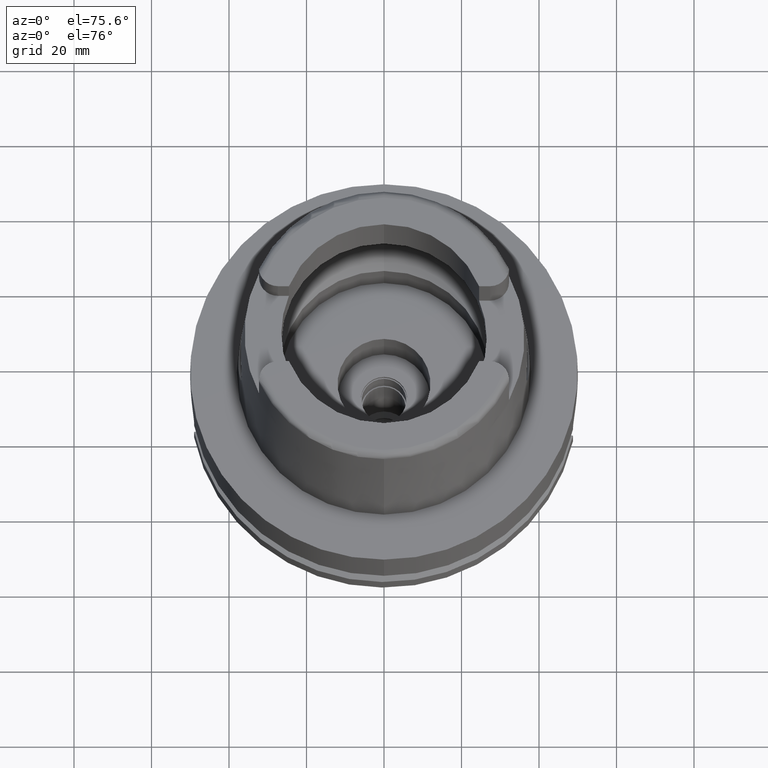
[diagram: clean part render]
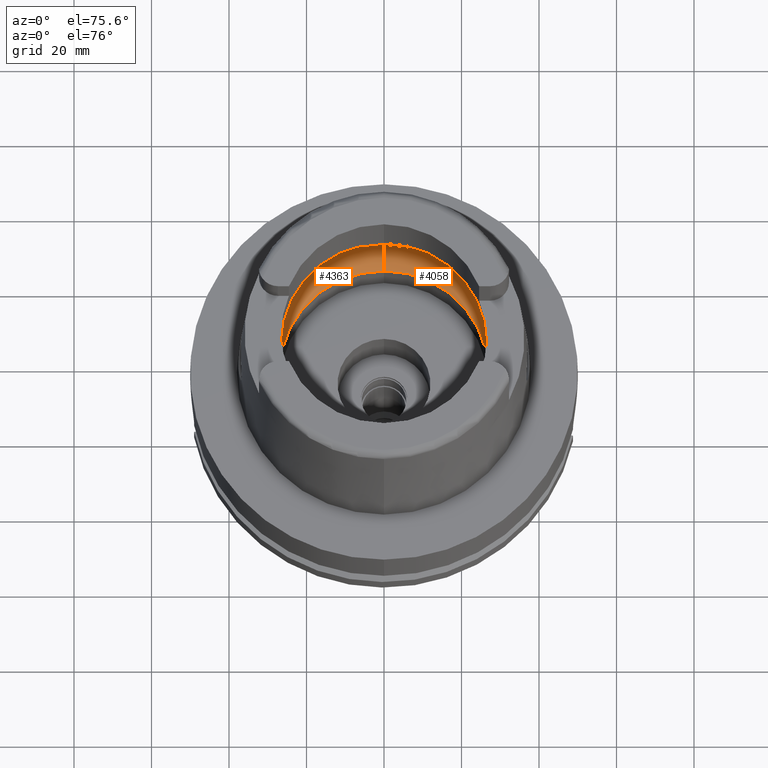
[diagram: same view with one multi-face feature highlighted, each face labeled with its STEP entity id]
A machine part, auxiliary view. The highlighted faces form ONE feature: a constant-radius fillet chain: 2 tangent blend faces with common blend radius 12 mm. The faces share edges in the B-rep.
Their STEP definitions:
[1] entity #4058 (Torus):
#4 = CIRCLE ( 'NONE', #631, 11.99999999999999822 ) ;
#12 = DIRECTION ( 'NONE',  ( 0.0000000000000000000, 0.0000000000000000000, -1.000000000000000000 ) ) ;
#110 = CARTESIAN_POINT ( 'NONE',  ( 0.0000000000000000000, 31.50000000000000000, 9.496624327025999790 ) ) ;
#115 = EDGE_CURVE ( 'NONE', #2966, #1504, #3160, .T. ) ;
#153 = CARTESIAN_POINT ( 'NONE',  ( 0.0000000000000000000, -19.50000000000000000, 9.496624327025999790 ) ) ;
#164 = CARTESIAN_POINT ( 'NONE',  ( 31.40918884336000616, 2.390158196043999705, 9.496624327025999790 ) ) ;
#363 = CARTESIAN_POINT ( 'NONE',  ( 0.0000000000000000000, 0.0000000000000000000, 9.496624327025999790 ) ) ;
#513 = CIRCLE ( 'NONE', #2943, 11.99999999999999822 ) ;
#537 = EDGE_CURVE ( 'NONE', #1291, #2337, #2030, .T. ) ;
#553 = DIRECTION ( 'NONE',  ( 0.0000000000000000000, 0.0000000000000000000, 1.000000000000000000 ) ) ;
#575 = AXIS2_PLACEMENT_3D ( 'NONE', #4468, #4438, #3554 ) ;
#631 = AXIS2_PLACEMENT_3D ( 'NONE', #2416, #4190, #4597 ) ;
#690 = ORIENTED_EDGE ( 'NONE', *, *, #4661, .F. ) ;
#801 = VERTEX_POINT ( 'NONE', #4441 ) ;
#1291 = VERTEX_POINT ( 'NONE', #110 ) ;
#1461 = CARTESIAN_POINT ( 'NONE',  ( 0.0000000000000000000, 0.0000000000000000000, 0.04993178413040000319 ) ) ;
#1504 = VERTEX_POINT ( 'NONE', #1541 ) ;
#1541 = CARTESIAN_POINT ( 'NONE',  ( 31.40918884336000616, -2.390158196043999705, 9.496624327025999790 ) ) ;
#1616 = CARTESIAN_POINT ( 'NONE',  ( 31.48971910753999026, 0.8697454017787721314, 9.000000000000001776 ) ) ;
#1654 = EDGE_LOOP ( 'NONE', ( #5456, #3839, #690, #2314, #4428, #3900, #3760 ) ) ;
#1717 = CARTESIAN_POINT ( 'NONE',  ( 31.46287568614665986, -1.684656699965325632, 9.190219625007294724 ) ) ;
#1779 = VERTEX_POINT ( 'NONE', #4093 ) ;
#2007 = DIRECTION ( 'NONE',  ( 0.0000000000000000000, 0.0000000000000000000, 1.000000000000000000 ) ) ;
#2030 = CIRCLE ( 'NONE', #2748, 31.50000000000000000 ) ;
#2066 = EDGE_CURVE ( 'NONE', #2337, #2966, #3656, .T. ) ;
#2153 = DIRECTION ( 'NONE',  ( 0.0000000000000000000, 1.000000000000000000, 0.0000000000000000000 ) ) ;
#2219 = EDGE_CURVE ( 'NONE', #1504, #801, #5444, .T. ) ;
#2304 = DIRECTION ( 'NONE',  ( 0.0000000000000000000, -0.6166666666667049990, -0.7872243785746061429 ) ) ;
#2314 = ORIENTED_EDGE ( 'NONE', *, *, #2530, .F. ) ;
#2337 = VERTEX_POINT ( 'NONE', #164 ) ;
#2416 = CARTESIAN_POINT ( 'NONE',  ( 0.0000000000000000000, 19.50000000000000000, 9.496624327025999790 ) ) ;
#2507 = EDGE_CURVE ( 'NONE', #1779, #801, #513, .T. ) ;
#2530 = EDGE_CURVE ( 'NONE', #1779, #3409, #5126, .T. ) ;
#2555 = CARTESIAN_POINT ( 'NONE',  ( 31.48971910753999026, -0.8697454017312684638, 8.999999999999998224 ) ) ;
#2656 = CARTESIAN_POINT ( 'NONE',  ( 0.0000000000000000000, 26.89999999999999858, 0.04993178413040000319 ) ) ;
#2717 = AXIS2_PLACEMENT_3D ( 'NONE', #363, #2007, #2961 ) ;
#2748 = AXIS2_PLACEMENT_3D ( 'NONE', #4266, #12, #2153 ) ;
#2943 = AXIS2_PLACEMENT_3D ( 'NONE', #153, #4828, #2304 ) ;
#2961 = DIRECTION ( 'NONE',  ( 0.0000000000000000000, 1.000000000000000000, 0.0000000000000000000 ) ) ;
#2966 = VERTEX_POINT ( 'NONE', #4355 ) ;
#3160 = B_SPLINE_CURVE_WITH_KNOTS ( 'NONE', 3,
 ( #5590, #2555, #1717, #5114 ),
 .UNSPECIFIED., .F., .F.,
 ( 4, 4 ),
 ( 0.0000000000000000000, 1.000000000000000000 ),
 .UNSPECIFIED. ) ;
#3355 = CARTESIAN_POINT ( 'NONE',  ( 31.48971910754000447, 0.0000000000000000000, 9.000000000000000000 ) ) ;
#3409 = VERTEX_POINT ( 'NONE', #2656 ) ;
#3554 = DIRECTION ( 'NONE',  ( 0.9971171061384295209, -0.07587803796965221503, 0.0000000000000000000 ) ) ;
#3647 = DIRECTION ( 'NONE',  ( 0.0000000000000000000, -1.000000000000000000, 0.0000000000000000000 ) ) ;
#3656 = B_SPLINE_CURVE_WITH_KNOTS ( 'NONE', 3,
 ( #3752, #5488, #1616, #3355 ),
 .UNSPECIFIED., .F., .F.,
 ( 4, 4 ),
 ( 0.0000000000000000000, 1.000000000000000000 ),
 .UNSPECIFIED. ) ;
#3752 = CARTESIAN_POINT ( 'NONE',  ( 31.40918884336000616, 2.390158196043999705, 9.496624327025999790 ) ) ;
#3760 = ORIENTED_EDGE ( 'NONE', *, *, #115, .F. ) ;
#3839 = ORIENTED_EDGE ( 'NONE', *, *, #537, .F. ) ;
#3900 = ORIENTED_EDGE ( 'NONE', *, *, #2219, .F. ) ;
#3973 = TOROIDAL_SURFACE ( 'NONE', #2717, 19.50000000000000000, 12.00000000000000000 ) ;
#4058 = ADVANCED_FACE ( 'NONE', ( #5127 ), #3973, .F. ) ;
#4093 = CARTESIAN_POINT ( 'NONE',  ( 0.0000000000000000000, -26.89999999999999858, 0.04993178413040000319 ) ) ;
#4190 = DIRECTION ( 'NONE',  ( 1.000000000000000000, 0.0000000000000000000, 0.0000000000000000000 ) ) ;
#4266 = CARTESIAN_POINT ( 'NONE',  ( 0.0000000000000000000, 0.0000000000000000000, 9.496624327025999790 ) ) ;
#4355 = CARTESIAN_POINT ( 'NONE',  ( 31.48971910754000447, 0.0000000000000000000, 9.000000000000000000 ) ) ;
#4428 = ORIENTED_EDGE ( 'NONE', *, *, #2507, .T. ) ;
#4438 = DIRECTION ( 'NONE',  ( 0.0000000000000000000, 0.0000000000000000000, -1.000000000000000000 ) ) ;
#4441 = CARTESIAN_POINT ( 'NONE',  ( 0.0000000000000000000, -31.50000000000000000, 9.496624327025999790 ) ) ;
#4468 = CARTESIAN_POINT ( 'NONE',  ( 0.0000000000000000000, 0.0000000000000000000, 9.496624327025999790 ) ) ;
#4597 = DIRECTION ( 'NONE',  ( 0.0000000000000000000, 0.6166666666667049990, -0.7872243785746061429 ) ) ;
#4661 = EDGE_CURVE ( 'NONE', #3409, #1291, #4, .T. ) ;
#4828 = DIRECTION ( 'NONE',  ( -1.000000000000000000, 0.0000000000000000000, 0.0000000000000000000 ) ) ;
#5114 = CARTESIAN_POINT ( 'NONE',  ( 31.40918884336000616, -2.390158196043999705, 9.496624327025999790 ) ) ;
#5126 = CIRCLE ( 'NONE', #5383, 26.89999999999999858 ) ;
#5127 = FACE_OUTER_BOUND ( 'NONE', #1654, .T. ) ;
#5383 = AXIS2_PLACEMENT_3D ( 'NONE', #1461, #553, #3647 ) ;
#5444 = CIRCLE ( 'NONE', #575, 31.49999999999998934 ) ;
#5456 = ORIENTED_EDGE ( 'NONE', *, *, #2066, .F. ) ;
#5488 = CARTESIAN_POINT ( 'NONE',  ( 31.46287568614665986, 1.684656700008886121, 9.190219625026216477 ) ) ;
#5590 = CARTESIAN_POINT ( 'NONE',  ( 31.48971910754000447, 0.0000000000000000000, 9.000000000000000000 ) ) ;
[2] entity #4363 (Torus):
#4 = CIRCLE ( 'NONE', #631, 11.99999999999999822 ) ;
#110 = CARTESIAN_POINT ( 'NONE',  ( 0.0000000000000000000, 31.50000000000000000, 9.496624327025999790 ) ) ;
#153 = CARTESIAN_POINT ( 'NONE',  ( 0.0000000000000000000, -19.50000000000000000, 9.496624327025999790 ) ) ;
#370 = CARTESIAN_POINT ( 'NONE',  ( -31.40918884336000616, -2.390158196043999705, 9.496624327025999790 ) ) ;
#457 = CARTESIAN_POINT ( 'NONE',  ( -31.48971910754000447, 0.0000000000000000000, 9.000000000000000000 ) ) ;
#513 = CIRCLE ( 'NONE', #2943, 11.99999999999999822 ) ;
#524 = ORIENTED_EDGE ( 'NONE', *, *, #3609, .F. ) ;
#615 = ORIENTED_EDGE ( 'NONE', *, *, #3299, .F. ) ;
#631 = AXIS2_PLACEMENT_3D ( 'NONE', #2416, #4190, #4597 ) ;
#801 = VERTEX_POINT ( 'NONE', #4441 ) ;
#867 = FACE_OUTER_BOUND ( 'NONE', #2956, .T. ) ;
#1050 = CIRCLE ( 'NONE', #4201, 31.49999999999998934 ) ;
#1080 = DIRECTION ( 'NONE',  ( 0.0000000000000000000, 0.0000000000000000000, -1.000000000000000000 ) ) ;
#1113 = DIRECTION ( 'NONE',  ( 0.0000000000000000000, 0.0000000000000000000, 1.000000000000000000 ) ) ;
#1147 = ORIENTED_EDGE ( 'NONE', *, *, #1920, .F. ) ;
#1291 = VERTEX_POINT ( 'NONE', #110 ) ;
#1538 = CIRCLE ( 'NONE', #1627, 26.89999999999999858 ) ;
#1627 = AXIS2_PLACEMENT_3D ( 'NONE', #5387, #1113, #3367 ) ;
#1778 = DIRECTION ( 'NONE',  ( 0.0000000000000000000, 1.000000000000000000, 0.0000000000000000000 ) ) ;
#1779 = VERTEX_POINT ( 'NONE', #4093 ) ;
#1800 = ORIENTED_EDGE ( 'NONE', *, *, #4620, .F. ) ;
#1920 = EDGE_CURVE ( 'NONE', #3792, #3649, #4951, .T. ) ;
#1927 = VERTEX_POINT ( 'NONE', #370 ) ;
#2006 = DIRECTION ( 'NONE',  ( -0.9971171061384295209, 0.07587803796965221503, 0.0000000000000000000 ) ) ;
#2068 = CARTESIAN_POINT ( 'NONE',  ( -31.48971910754000447, -0.8697454017997489073, 8.999999999999998224 ) ) ;
#2141 = CARTESIAN_POINT ( 'NONE',  ( -31.40918884336000616, 2.390158196043999705, 9.496624327025999790 ) ) ;
#2304 = DIRECTION ( 'NONE',  ( 0.0000000000000000000, -0.6166666666667049990, -0.7872243785746061429 ) ) ;
#2416 = CARTESIAN_POINT ( 'NONE',  ( 0.0000000000000000000, 19.50000000000000000, 9.496624327025999790 ) ) ;
#2441 = CARTESIAN_POINT ( 'NONE',  ( -31.48971910754000447, 0.0000000000000000000, 9.000000000000000000 ) ) ;
#2489 = CARTESIAN_POINT ( 'NONE',  ( -31.40918884336000616, 2.390158196043999705, 9.496624327025999790 ) ) ;
#2493 = DIRECTION ( 'NONE',  ( 0.0000000000000000000, -1.000000000000000000, 0.0000000000000000000 ) ) ;
#2507 = EDGE_CURVE ( 'NONE', #1779, #801, #513, .T. ) ;
#2656 = CARTESIAN_POINT ( 'NONE',  ( 0.0000000000000000000, 26.89999999999999858, 0.04993178413040000319 ) ) ;
#2757 = ORIENTED_EDGE ( 'NONE', *, *, #2507, .F. ) ;
#2885 = AXIS2_PLACEMENT_3D ( 'NONE', #2982, #3911, #1778 ) ;
#2943 = AXIS2_PLACEMENT_3D ( 'NONE', #153, #4828, #2304 ) ;
#2956 = EDGE_LOOP ( 'NONE', ( #5384, #2757, #1800, #5073, #524, #1147, #615 ) ) ;
#2982 = CARTESIAN_POINT ( 'NONE',  ( 0.0000000000000000000, 0.0000000000000000000, 9.496624327025999790 ) ) ;
#3177 = B_SPLINE_CURVE_WITH_KNOTS ( 'NONE', 3,
 ( #3476, #4325, #2068, #457 ),
 .UNSPECIFIED., .F., .F.,
 ( 4, 4 ),
 ( 0.0000000000000000000, 1.000000000000000000 ),
 .UNSPECIFIED. ) ;
#3216 = CARTESIAN_POINT ( 'NONE',  ( 0.0000000000000000000, 0.0000000000000000000, 9.496624327025999790 ) ) ;
#3263 = DIRECTION ( 'NONE',  ( 0.0000000000000000000, 0.0000000000000000000, -1.000000000000000000 ) ) ;
#3299 = EDGE_CURVE ( 'NONE', #1927, #3792, #3177, .T. ) ;
#3367 = DIRECTION ( 'NONE',  ( 0.0000000000000000000, 1.000000000000000000, 0.0000000000000000000 ) ) ;
#3409 = VERTEX_POINT ( 'NONE', #2656 ) ;
#3476 = CARTESIAN_POINT ( 'NONE',  ( -31.40918884336000616, -2.390158196043999705, 9.496624327025999790 ) ) ;
#3609 = EDGE_CURVE ( 'NONE', #3649, #1291, #1050, .T. ) ;
#3649 = VERTEX_POINT ( 'NONE', #2141 ) ;
#3792 = VERTEX_POINT ( 'NONE', #2441 ) ;
#3911 = DIRECTION ( 'NONE',  ( 0.0000000000000000000, 0.0000000000000000000, 1.000000000000000000 ) ) ;
#4093 = CARTESIAN_POINT ( 'NONE',  ( 0.0000000000000000000, -26.89999999999999858, 0.04993178413040000319 ) ) ;
#4190 = DIRECTION ( 'NONE',  ( 1.000000000000000000, 0.0000000000000000000, 0.0000000000000000000 ) ) ;
#4201 = AXIS2_PLACEMENT_3D ( 'NONE', #3216, #3263, #2006 ) ;
#4235 = CARTESIAN_POINT ( 'NONE',  ( -31.48971910754000447, 0.0000000000000000000, 9.000000000000000000 ) ) ;
#4284 = AXIS2_PLACEMENT_3D ( 'NONE', #4963, #1080, #2493 ) ;
#4298 = CARTESIAN_POINT ( 'NONE',  ( -31.48971910754000447, 0.8697454016785111097, 9.000000000000001776 ) ) ;
#4325 = CARTESIAN_POINT ( 'NONE',  ( -31.46287568614665986, -1.684656700028137832, 9.190219625034576012 ) ) ;
#4363 = ADVANCED_FACE ( 'NONE', ( #867 ), #5065, .F. ) ;
#4376 = CIRCLE ( 'NONE', #4284, 31.50000000000000000 ) ;
#4441 = CARTESIAN_POINT ( 'NONE',  ( 0.0000000000000000000, -31.50000000000000000, 9.496624327025999790 ) ) ;
#4597 = DIRECTION ( 'NONE',  ( 0.0000000000000000000, 0.6166666666667049990, -0.7872243785746061429 ) ) ;
#4620 = EDGE_CURVE ( 'NONE', #3409, #1779, #1538, .T. ) ;
#4661 = EDGE_CURVE ( 'NONE', #3409, #1291, #4, .T. ) ;
#4828 = DIRECTION ( 'NONE',  ( -1.000000000000000000, 0.0000000000000000000, 0.0000000000000000000 ) ) ;
#4951 = B_SPLINE_CURVE_WITH_KNOTS ( 'NONE', 3,
 ( #4235, #4298, #5515, #2489 ),
 .UNSPECIFIED., .F., .F.,
 ( 4, 4 ),
 ( 0.0000000000000000000, 1.000000000000000000 ),
 .UNSPECIFIED. ) ;
#4963 = CARTESIAN_POINT ( 'NONE',  ( 0.0000000000000000000, 0.0000000000000000000, 9.496624327025999790 ) ) ;
#5065 = TOROIDAL_SURFACE ( 'NONE', #2885, 19.50000000000000000, 12.00000000000000000 ) ;
#5073 = ORIENTED_EDGE ( 'NONE', *, *, #4661, .T. ) ;
#5219 = EDGE_CURVE ( 'NONE', #801, #1927, #4376, .T. ) ;
#5384 = ORIENTED_EDGE ( 'NONE', *, *, #5219, .F. ) ;
#5387 = CARTESIAN_POINT ( 'NONE',  ( 0.0000000000000000000, 0.0000000000000000000, 0.04993178413040000319 ) ) ;
#5515 = CARTESIAN_POINT ( 'NONE',  ( -31.46287568614665986, 1.684656699916923683, 9.190219624986275093 ) ) ;